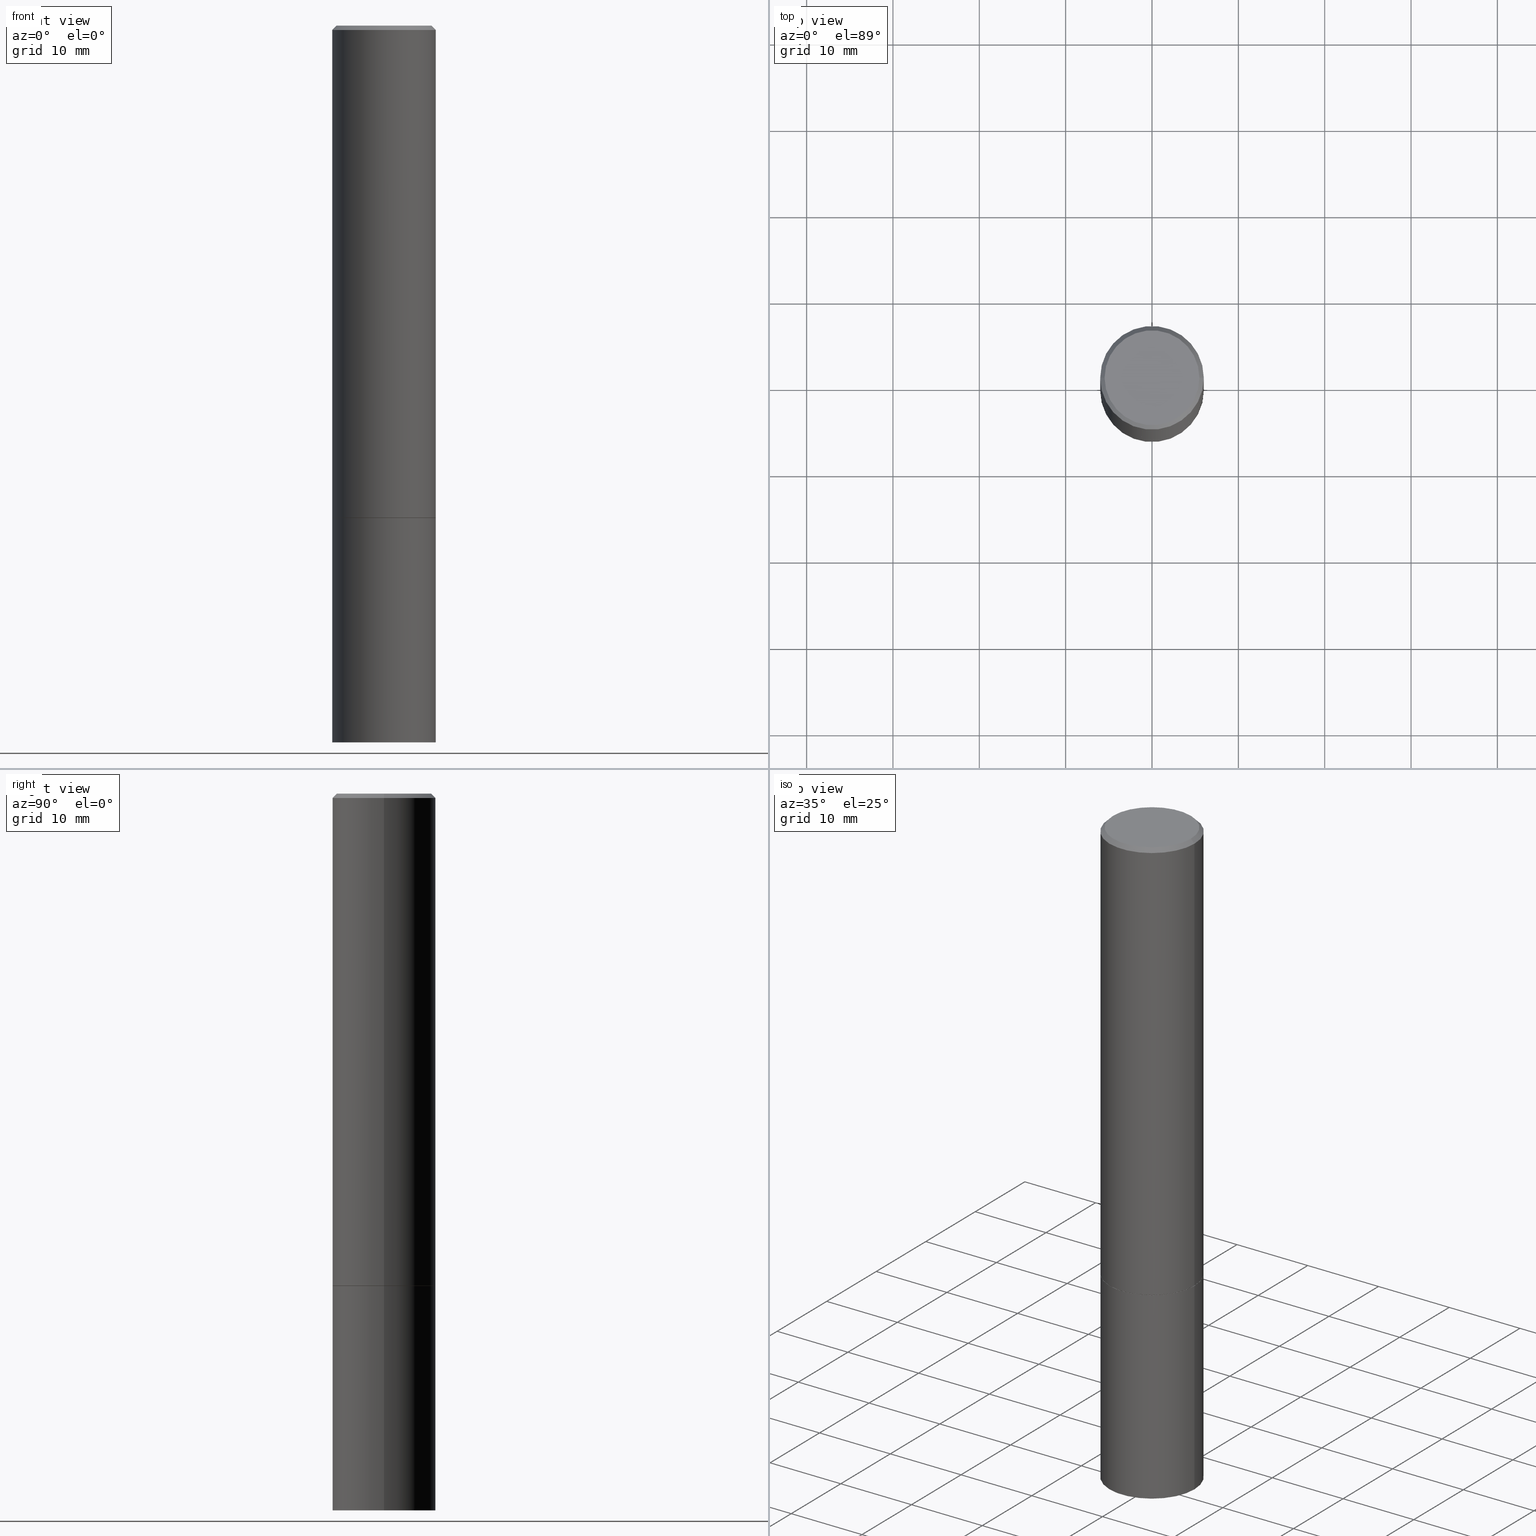
[diagram: canonical four-view strip — front | top / right | iso, engineering-drawing reading convention]
A machine part, canonical four-view strip (front | top / right | iso — engineering-drawing reading convention). The complete STEP part file that produces these views, byte-faithful:
ISO-10303-21;
HEADER;
FILE_DESCRIPTION (( 'STEP AP203' ),
    '1' );
FILE_NAME ('45494.STEP',
    '2024-02-28T09:46:00',
    ( '' ),
    ( '' ),
    'SwSTEP 2.0',
    'SolidWorks 2023',
    '' );
FILE_SCHEMA (( 'CONFIG_CONTROL_DESIGN' ));
ENDSEC;

DATA;
#1 = AXIS2_PLACEMENT_3D ( 'NONE', #354, #161, #44 ) ;
#2 = ORIENTED_EDGE ( 'NONE', *, *, #150, .T. ) ;
#3 = CALENDAR_DATE ( 2024, 28, 2 ) ;
#4 = CARTESIAN_POINT ( 'NONE',  ( 5.487876547960065873E-29, -7.835233272497903917E-15, -2.244100000000000428 ) ) ;
#5 = DATE_AND_TIME ( #341, #95 ) ;
#6 = DIRECTION ( 'NONE',  ( -2.445468806185136597E-29, 3.491481338843145583E-15, 1.000000000000000000 ) ) ;
#7 = SECURITY_CLASSIFICATION ( '', '', #339 ) ;
#8 = AXIS2_PLACEMENT_3D ( 'NONE', #92, #153, #264 ) ;
#9 = CARTESIAN_POINT ( 'NONE',  ( 5.487876547960065873E-29, -7.835233272497903917E-15, -2.244100000000000428 ) ) ;
#10 = DIMENSIONAL_EXPONENTS ( 1.000000000000000000, 0.000000000000000000, 0.000000000000000000, 0.000000000000000000, 0.000000000000000000, 0.000000000000000000, 0.000000000000000000 ) ;
#11 = FACE_OUTER_BOUND ( 'NONE', #162, .T. ) ;
#12 = EDGE_CURVE ( 'NONE', #315, #326, #96, .T. ) ;
#13 = CARTESIAN_POINT ( 'NONE',  ( 0.2161999999999996980, -1.586759460484350016E-15, 4.268512490111238857E-18 ) ) ;
#14 = AXIS2_PLACEMENT_3D ( 'NONE', #258, #122, #351 ) ;
#15 = DIRECTION ( 'NONE',  ( 1.000000000000000000, -6.982962677686269077E-15, 0.000000000000000000 ) ) ;
#16 = CARTESIAN_POINT ( 'NONE',  ( -0.2361999999999999933, -7.943871479852467996E-15, -2.244100000000000428 ) ) ;
#17 = CARTESIAN_POINT ( 'NONE',  ( 5.487876547960065873E-29, -7.835233272497903917E-15, -2.244100000000000428 ) ) ;
#18 = PRODUCT_DEFINITION_FORMATION_WITH_SPECIFIED_SOURCE ( 'ANY', '', #136, .NOT_KNOWN. ) ;
#19 = CARTESIAN_POINT ( 'NONE',  ( -0.2351999999999999924, -6.158738303641924552E-15, -2.244100000000000428 ) ) ;
#20 = EDGE_CURVE ( 'NONE', #326, #315, #353, .T. ) ;
#21 = DIRECTION ( 'NONE',  ( 1.000000000000000000, -6.982962677686269077E-15, 0.000000000000000000 ) ) ;
#22 = DIRECTION ( 'NONE',  ( 1.000000000000000000, -6.982962677686266711E-15, 4.876176775795936353E-29 ) ) ;
#23 = VERTEX_POINT ( 'NONE', #117 ) ;
#24 = AXIS2_PLACEMENT_3D ( 'NONE', #331, #68, #266 ) ;
#25 = PERSON_AND_ORGANIZATION ( #233, #51 ) ;
#26 = DATE_TIME_ROLE ( 'creation_date' ) ;
#27 = CC_DESIGN_PERSON_AND_ORGANIZATION_ASSIGNMENT ( #304, #364, ( #112 ) ) ;
#28 = ORIENTED_EDGE ( 'NONE', *, *, #20, .F. ) ;
#29 = PERSON_AND_ORGANIZATION ( #233, #51 ) ;
#30 = LOCAL_TIME ( 4, 46, 0.000000000000000000, #54 ) ;
#31 = ORIENTED_EDGE ( 'NONE', *, *, #20, .T. ) ;
#32 = CIRCLE ( 'NONE', #270, 0.2361999999999999933 ) ;
#33 = CALENDAR_DATE ( 2024, 28, 2 ) ;
#34 = ORIENTED_EDGE ( 'NONE', *, *, #239, .T. ) ;
#35 = ORIENTED_EDGE ( 'NONE', *, *, #145, .T. ) ;
#36 = PLANE ( 'NONE',  #75 ) ;
#37 = AXIS2_PLACEMENT_3D ( 'NONE', #219, #194, #287 ) ;
#38 = AXIS2_PLACEMENT_3D ( 'NONE', #344, #109, #202 ) ;
#39 = DIRECTION ( 'NONE',  ( -2.445468806185136597E-29, 3.491481338843145583E-15, 1.000000000000000000 ) ) ;
#40 = CARTESIAN_POINT ( 'NONE',  ( 5.487876547960065873E-29, -7.835233272497903917E-15, -2.244100000000000428 ) ) ;
#41 = DIRECTION ( 'NONE',  ( -2.438088387897960049E-29, 3.491481338843145188E-15, 1.000000000000000000 ) ) ;
#42 = EDGE_CURVE ( 'NONE', #76, #285, #226, .T. ) ;
#43 = DIRECTION ( 'NONE',  ( -2.445468806185136597E-29, 3.491481338843145583E-15, 1.000000000000000000 ) ) ;
#44 = DIRECTION ( 'NONE',  ( -1.000000000000000000, 6.982962677686266711E-15, 0.000000000000000000 ) ) ;
#45 = EDGE_CURVE ( 'NONE', #23, #314, #192, .T. ) ;
#46 =( NAMED_UNIT ( * ) PLANE_ANGLE_UNIT ( ) SI_UNIT ( $, .RADIAN. ) );
#47 = EDGE_LOOP ( 'NONE', ( #156, #60, #337, #169 ) ) ;
#48 = CARTESIAN_POINT ( 'NONE',  ( -0.2351999999999999924, -6.164036757990147743E-15, -2.244100000000000428 ) ) ;
#49 = EDGE_LOOP ( 'NONE', ( #360, #252, #105, #196 ) ) ;
#50 = DIRECTION ( 'NONE',  ( 1.000000000000000000, 0.000000000000000000, 0.000000000000000000 ) ) ;
#51 = ORGANIZATION ( 'UNSPECIFIED', 'UNSPECIFIED', '' ) ;
#52 = EDGE_CURVE ( 'NONE', #79, #175, #236, .T. ) ;
#53 = DIRECTION ( 'NONE',  ( 2.438088387897960049E-29, -3.491481338843145188E-15, -1.000000000000000000 ) ) ;
#54 = COORDINATED_UNIVERSAL_TIME_OFFSET ( 5, 0, .BEHIND. ) ;
#55 = ORIENTED_EDGE ( 'NONE', *, *, #220, .T. ) ;
#56 = ADVANCED_FACE ( 'NONE', ( #308 ), #36, .F. ) ;
#57 = ORIENTED_EDGE ( 'NONE', *, *, #52, .T. ) ;
#58 = AXIS2_PLACEMENT_3D ( 'NONE', #94, #147, #259 ) ;
#59 = EDGE_LOOP ( 'NONE', ( #160, #99, #144, #215 ) ) ;
#60 = ORIENTED_EDGE ( 'NONE', *, *, #45, .T. ) ;
#61 = CARTESIAN_POINT ( 'NONE',  ( 4.890937612370284544E-31, -6.982962677686307633E-17, -0.02000000000000004552 ) ) ;
#62 = FACE_OUTER_BOUND ( 'NONE', #311, .T. ) ;
#63 = CARTESIAN_POINT ( 'NONE',  ( 0.2361999999999997157, -1.690279253850496996E-15, -0.02000000000000004552 ) ) ;
#64 = ADVANCED_FACE ( 'NONE', ( #62 ), #319, .T. ) ;
#65 = LINE ( 'NONE', #148, #118 ) ;
#66 = AXIS2_PLACEMENT_3D ( 'NONE', #193, #174, #50 ) ;
#67 = CARTESIAN_POINT ( 'NONE',  ( 0.2361999999999999933, -9.481117575628557435E-15, -2.243100000000000094 ) ) ;
#68 = DIRECTION ( 'NONE',  ( -2.445468806185136597E-29, 3.491481338843145583E-15, 1.000000000000000000 ) ) ;
#69 = CARTESIAN_POINT ( 'NONE',  ( 1.509716530915768548E-15, 0.2161999999999996980, -7.527240092128368218E-16 ) ) ;
#70 = ORIENTED_EDGE ( 'NONE', *, *, #173, .F. ) ;
#71 = FACE_OUTER_BOUND ( 'NONE', #246, .T. ) ;
#72 = VERTEX_POINT ( 'NONE', #206 ) ;
#73 = CARTESIAN_POINT ( 'NONE',  ( 0.2351999999999999924, -9.477626094289712851E-15, -2.244100000000000428 ) ) ;
#74 = APPLICATION_PROTOCOL_DEFINITION ( 'international standard', 'config_control_design', 1994, #272 ) ;
#75 = AXIS2_PLACEMENT_3D ( 'NONE', #363, #53, #167 ) ;
#76 = VERTEX_POINT ( 'NONE', #229 ) ;
#77 = APPROVAL_PERSON_ORGANIZATION ( #29, #124, #133 ) ;
#78 = COORDINATED_UNIVERSAL_TIME_OFFSET ( 5, 0, .BEHIND. ) ;
#79 = VERTEX_POINT ( 'NONE', #13 ) ;
#80 = CC_DESIGN_PERSON_AND_ORGANIZATION_ASSIGNMENT ( #251, #243, ( #7 ) ) ;
#81 = ORIENTED_EDGE ( 'NONE', *, *, #150, .F. ) ;
#82 = PERSON_AND_ORGANIZATION_ROLE ( 'design_owner' ) ;
#83 = EDGE_LOOP ( 'NONE', ( #142, #135, #35, #81 ) ) ;
#84 = PERSON_AND_ORGANIZATION_ROLE ( 'design_supplier' ) ;
#85 = DIRECTION ( 'NONE',  ( 1.000000000000000000, -6.982962677686264344E-15, 0.000000000000000000 ) ) ;
#86 = ADVANCED_FACE ( 'NONE', ( #11 ), #91, .T. ) ;
#87 = DIRECTION ( 'NONE',  ( 1.000000000000000000, -6.982962677686266711E-15, 4.876176775795936353E-29 ) ) ;
#88 = FACE_OUTER_BOUND ( 'NONE', #312, .T. ) ;
#89 = MANIFOLD_SOLID_BREP ( 'Body-Move/Copy2[2]', #255 ) ;
#90 = CONICAL_SURFACE ( 'NONE', #171, 0.2351999999999999924, 0.7853981633974141952 ) ;
#91 = CYLINDRICAL_SURFACE ( 'NONE', #58, 0.2361999999999998545 ) ;
#92 = CARTESIAN_POINT ( 'NONE',  ( 5.485431079153880270E-29, -7.831741791159060910E-15, -2.243100000000000094 ) ) ;
#93 = UNCERTAINTY_MEASURE_WITH_UNIT (LENGTH_MEASURE( 1.000000000000000082E-05 ), #98, 'distance_accuracy_value', 'NONE');
#94 = CARTESIAN_POINT ( 'NONE',  ( 0.000000000000000000, 0.000000000000000000, 0.000000000000000000 ) ) ;
#95 = LOCAL_TIME ( 4, 46, 0.000000000000000000, #307 ) ;
#96 = CIRCLE ( 'NONE', #305, 0.2351999999999999924 ) ;
#97 = VECTOR ( 'NONE', #209, 39.37007874015748143 ) ;
#98 =( CONVERSION_BASED_UNIT ( 'INCH', #130 ) LENGTH_UNIT ( ) NAMED_UNIT ( #10 ) );
#99 = ORIENTED_EDGE ( 'NONE', *, *, #42, .T. ) ;
#100 = DIRECTION ( 'NONE',  ( -2.445468806185136597E-29, 3.491481338843145583E-15, 1.000000000000000000 ) ) ;
#101 = DIRECTION ( 'NONE',  ( -1.000000000000000000, 6.982962677686265922E-15, -4.876176775795935793E-29 ) ) ;
#102 = ADVANCED_FACE ( 'NONE', ( #180 ), #125, .T. ) ;
#103 = VECTOR ( 'NONE', #330, 39.37007874015748143 ) ;
#104 = DIRECTION ( 'NONE',  ( 2.438088387897960049E-29, -3.491481338843145188E-15, -1.000000000000000000 ) ) ;
#105 = ORIENTED_EDGE ( 'NONE', *, *, #355, .F. ) ;
#106 = DIRECTION ( 'NONE',  ( -0.7071067811865232589, 7.493145998870265808E-15, 0.7071067811865715536 ) ) ;
#107 = ADVANCED_FACE ( 'NONE', ( #317 ), #90, .T. ) ;
#108 = SHAPE_DEFINITION_REPRESENTATION ( #198, #210 ) ;
#109 = DIRECTION ( 'NONE',  ( -2.445468806185136597E-29, 3.491481338843145583E-15, 1.000000000000000000 ) ) ;
#110 = AXIS2_PLACEMENT_3D ( 'NONE', #17, #327, #21 ) ;
#111 = CARTESIAN_POINT ( 'NONE',  ( -0.2361999999999998545, 1.678301941865355605E-15, -1.161852468318208056E-29 ) ) ;
#112 = PRODUCT_DEFINITION ( 'UNKNOWN', '', #18, #338 ) ;
#113 = DATE_TIME_ROLE ( 'classification_date' ) ;
#114 = DIRECTION ( 'NONE',  ( 1.000000000000000000, -6.982962677686264344E-15, 0.000000000000000000 ) ) ;
#115 = CALENDAR_DATE ( 2024, 28, 2 ) ;
#116 = CARTESIAN_POINT ( 'NONE',  ( 5.487876547960065873E-29, -7.835233272497903917E-15, -2.244100000000000428 ) ) ;
#117 = CARTESIAN_POINT ( 'NONE',  ( -0.2361999999999999933, -7.943871479852467996E-15, -3.267700000000000049 ) ) ;
#118 = VECTOR ( 'NONE', #320, 39.37007874015748143 ) ;
#119 = DIRECTION ( 'NONE',  ( -0.7071067811865471286, 2.468850131082252722E-15, -0.7071067811865479058 ) ) ;
#120 = DIRECTION ( 'NONE',  ( -2.445468806185136597E-29, 3.491481338843145583E-15, 1.000000000000000000 ) ) ;
#121 = EDGE_CURVE ( 'NONE', #285, #72, #301, .T. ) ;
#122 = DIRECTION ( 'NONE',  ( 2.445468806185136597E-29, -3.491481338843145583E-15, -1.000000000000000000 ) ) ;
#123 = AXIS2_PLACEMENT_3D ( 'NONE', #291, #321, #295 ) ;
#124 = APPROVAL ( #143, 'UNSPECIFIED' ) ;
#125 = CYLINDRICAL_SURFACE ( 'NONE', #128, 0.2361999999999999933 ) ;
#126 = CARTESIAN_POINT ( 'NONE',  ( 0.2361999999999999933, -9.484609056967400443E-15, -2.244100000000000428 ) ) ;
#127 =( LENGTH_UNIT ( ) NAMED_UNIT ( * ) SI_UNIT ( $, .METRE. ) );
#128 = AXIS2_PLACEMENT_3D ( 'NONE', #204, #203, #87 ) ;
#129 = DIRECTION ( 'NONE',  ( -1.000000000000000000, 6.982962677686265922E-15, -4.876176775795935793E-29 ) ) ;
#130 = LENGTH_MEASURE_WITH_UNIT ( LENGTH_MEASURE( 0.02539999999999999897 ), #127 );
#131 = CC_DESIGN_APPROVAL ( #359, ( #7 ) ) ;
#132 = CIRCLE ( 'NONE', #24, 0.2161999999999996980 ) ;
#133 = APPROVAL_ROLE ( '' ) ;
#134 = EDGE_LOOP ( 'NONE', ( #303, #225, #274, #283 ) ) ;
#135 = ORIENTED_EDGE ( 'NONE', *, *, #228, .T. ) ;
#136 = PRODUCT ( '45494', '45494', '', ( #332 ) ) ;
#137 = APPROVAL_DATE_TIME ( #170, #124 ) ;
#138 = CLOSED_SHELL ( 'NONE', ( #324, #316, #56, #102 ) ) ;
#139 = VECTOR ( 'NONE', #106, 39.37007874015748854 ) ;
#140 = ORIENTED_EDGE ( 'NONE', *, *, #12, .F. ) ;
#141 = APPROVAL_DATE_TIME ( #168, #348 ) ;
#142 = ORIENTED_EDGE ( 'NONE', *, *, #52, .F. ) ;
#143 = APPROVAL_STATUS ( 'not_yet_approved' ) ;
#144 = ORIENTED_EDGE ( 'NONE', *, *, #145, .F. ) ;
#145 = EDGE_CURVE ( 'NONE', #72, #285, #361, .T. ) ;
#146 = APPLICATION_CONTEXT ( 'configuration controlled 3d designs of mechanical parts and assemblies' ) ;
#147 = DIRECTION ( 'NONE',  ( -2.445468806185136597E-29, 3.491481338843145583E-15, 1.000000000000000000 ) ) ;
#148 = CARTESIAN_POINT ( 'NONE',  ( 0.2361999999999999933, -1.649375784469496131E-15, 1.151752954443000088E-29 ) ) ;
#149 = DIRECTION ( 'NONE',  ( 1.000000000000000000, -6.982962677686266711E-15, 0.000000000000000000 ) ) ;
#150 = EDGE_CURVE ( 'NONE', #175, #285, #232, .T. ) ;
#151 = LINE ( 'NONE', #63, #290 ) ;
#152 = AXIS2_PLACEMENT_3D ( 'NONE', #154, #100, #22 ) ;
#153 = DIRECTION ( 'NONE',  ( -2.445468806185136597E-29, 3.491481338843145583E-15, 1.000000000000000000 ) ) ;
#154 = CARTESIAN_POINT ( 'NONE',  ( 0.000000000000000000, 0.000000000000000000, 0.000000000000000000 ) ) ;
#155 = DIRECTION ( 'NONE',  ( -2.445468806185136597E-29, 3.491481338843145583E-15, 1.000000000000000000 ) ) ;
#156 = ORIENTED_EDGE ( 'NONE', *, *, #335, .F. ) ;
#157 = AXIS2_PLACEMENT_3D ( 'NONE', #61, #262, #149 ) ;
#158 = CARTESIAN_POINT ( 'NONE',  ( 1.649375784469575806E-15, 0.2361999999999885858, -3.267700000000001381 ) ) ;
#159 = EDGE_CURVE ( 'NONE', #314, #176, #65, .T. ) ;
#160 = ORIENTED_EDGE ( 'NONE', *, *, #286, .T. ) ;
#161 = DIRECTION ( 'NONE',  ( 2.445468806185136597E-29, -3.491481338843145583E-15, -1.000000000000000000 ) ) ;
#162 = EDGE_LOOP ( 'NONE', ( #365, #34, #277, #190 ) ) ;
#163 = DIRECTION ( 'NONE',  ( 0.7071067811865232589, -2.468850131082003836E-15, 0.7071067811865715536 ) ) ;
#164 = ORIENTED_EDGE ( 'NONE', *, *, #45, .F. ) ;
#165 = VECTOR ( 'NONE', #119, 39.37007874015748143 ) ;
#166 = APPROVAL_STATUS ( 'not_yet_approved' ) ;
#167 = DIRECTION ( 'NONE',  ( -1.000000000000000000, 6.982962677686265922E-15, -4.876176775795935793E-29 ) ) ;
#168 = DATE_AND_TIME ( #33, #30 ) ;
#169 = ORIENTED_EDGE ( 'NONE', *, *, #220, .F. ) ;
#170 = DATE_AND_TIME ( #3, #306 ) ;
#171 = AXIS2_PLACEMENT_3D ( 'NONE', #292, #39, #207 ) ;
#172 = ORIENTED_EDGE ( 'NONE', *, *, #261, .T. ) ;
#173 = EDGE_CURVE ( 'NONE', #314, #23, #178, .T. ) ;
#174 = DIRECTION ( 'NONE',  ( 0.000000000000000000, 0.000000000000000000, 1.000000000000000000 ) ) ;
#175 = VERTEX_POINT ( 'NONE', #293 ) ;
#176 = VERTEX_POINT ( 'NONE', #126 ) ;
#177 = FACE_OUTER_BOUND ( 'NONE', #59, .T. ) ;
#178 = CIRCLE ( 'NONE', #231, 0.2361999999999999933 ) ;
#179 = CC_DESIGN_DATE_AND_TIME_ASSIGNMENT ( #284, #113, ( #7 ) ) ;
#180 = FACE_OUTER_BOUND ( 'NONE', #47, .T. ) ;
#181 = DIRECTION ( 'NONE',  ( 0.7071067811865471286, -7.319954787623254468E-15, -0.7071067811865479058 ) ) ;
#182 = CARTESIAN_POINT ( 'NONE',  ( 7.991058417971171713E-29, -1.140911357093774644E-14, -3.267700000000000049 ) ) ;
#183 = CIRCLE ( 'NONE', #242, 0.2361999999999999933 ) ;
#184 = FACE_OUTER_BOUND ( 'NONE', #300, .T. ) ;
#185 = CC_DESIGN_DATE_AND_TIME_ASSIGNMENT ( #276, #26, ( #112 ) ) ;
#186 = CARTESIAN_POINT ( 'NONE',  ( -0.2361999999999997157, 1.579546157692631255E-15, -0.02000000000000004552 ) ) ;
#187 = LINE ( 'NONE', #189, #103 ) ;
#188 = ADVANCED_FACE ( 'NONE', ( #297 ), #257, .T. ) ;
#189 = CARTESIAN_POINT ( 'NONE',  ( 0.2361999999999998545, -1.649375784469495145E-15, 1.151752954442999387E-29 ) ) ;
#190 = ORIENTED_EDGE ( 'NONE', *, *, #121, .F. ) ;
#191 =( NAMED_UNIT ( * ) SI_UNIT ( $, .STERADIAN. ) SOLID_ANGLE_UNIT ( ) );
#192 = CIRCLE ( 'NONE', #38, 0.2361999999999999933 ) ;
#193 = CARTESIAN_POINT ( 'NONE',  ( 0.000000000000000000, 0.000000000000000000, 0.000000000000000000 ) ) ;
#194 = DIRECTION ( 'NONE',  ( -2.445468806185136597E-29, 3.491481338843145583E-15, 1.000000000000000000 ) ) ;
#195 = APPROVAL_ROLE ( '' ) ;
#196 = ORIENTED_EDGE ( 'NONE', *, *, #159, .F. ) ;
#197 = ORIENTED_EDGE ( 'NONE', *, *, #239, .F. ) ;
#198 = PRODUCT_DEFINITION_SHAPE ( 'NONE', 'NONE',  #112 ) ;
#199 = PERSON_AND_ORGANIZATION ( #233, #51 ) ;
#200 = CONICAL_SURFACE ( 'NONE', #1, 0.2361999999999997157, 0.7853981633974477239 ) ;
#201 = DIRECTION ( 'NONE',  ( -2.445468806185136597E-29, 3.491481338843145583E-15, 1.000000000000000000 ) ) ;
#202 = DIRECTION ( 'NONE',  ( 1.000000000000000000, -6.982962677686265133E-15, 0.000000000000000000 ) ) ;
#203 = DIRECTION ( 'NONE',  ( -2.445468806185136597E-29, 3.491481338843145583E-15, 1.000000000000000000 ) ) ;
#204 = CARTESIAN_POINT ( 'NONE',  ( 0.000000000000000000, 0.000000000000000000, 0.000000000000000000 ) ) ;
#205 = CIRCLE ( 'NONE', #110, 0.2361999999999999933 ) ;
#206 = CARTESIAN_POINT ( 'NONE',  ( 0.2361999999999997157, -1.690279253850496996E-15, -0.02000000000000004552 ) ) ;
#207 = DIRECTION ( 'NONE',  ( 1.000000000000000000, -6.982962677686264344E-15, 0.000000000000000000 ) ) ;
#208 = DIRECTION ( 'NONE',  ( 1.000000000000000000, -6.982962677686264344E-15, 0.000000000000000000 ) ) ;
#209 = DIRECTION ( 'NONE',  ( -2.445468806185136877E-29, 3.491481338843145188E-15, 1.000000000000000000 ) ) ;
#210 = ADVANCED_BREP_SHAPE_REPRESENTATION ( '45494', ( #346, #89, #66 ), #296 ) ;
#211 = FACE_OUTER_BOUND ( 'NONE', #49, .T. ) ;
#212 = CC_DESIGN_APPROVAL ( #348, ( #18 ) ) ;
#213 = AXIS2_PLACEMENT_3D ( 'NONE', #158, #241, #101 ) ;
#214 = CARTESIAN_POINT ( 'NONE',  ( 5.485431079153880270E-29, -7.831741791159060910E-15, -2.243100000000000094 ) ) ;
#215 = ORIENTED_EDGE ( 'NONE', *, *, #265, .F. ) ;
#216 = ADVANCED_FACE ( 'NONE', ( #88 ), #234, .F. ) ;
#217 = ORIENTED_EDGE ( 'NONE', *, *, #328, .T. ) ;
#218 = AXIS2_PLACEMENT_3D ( 'NONE', #322, #120, #350 ) ;
#219 = CARTESIAN_POINT ( 'NONE',  ( -1.043851414335219820E-46, 1.490343170380447200E-32, 4.268512490100411279E-18 ) ) ;
#220 = EDGE_CURVE ( 'NONE', #244, #176, #183, .T. ) ;
#221 = APPROVAL_ROLE ( '' ) ;
#222 = EDGE_LOOP ( 'NONE', ( #172, #57 ) ) ;
#223 = ADVANCED_FACE ( 'NONE', ( #177 ), #352, .T. ) ;
#224 = PERSON_AND_ORGANIZATION_ROLE ( 'creator' ) ;
#225 = ORIENTED_EDGE ( 'NONE', *, *, #268, .T. ) ;
#226 = LINE ( 'NONE', #111, #349 ) ;
#227 = DIRECTION ( 'NONE',  ( -2.445468806185136597E-29, 3.491481338843145583E-15, 1.000000000000000000 ) ) ;
#228 = EDGE_CURVE ( 'NONE', #79, #72, #151, .T. ) ;
#229 = CARTESIAN_POINT ( 'NONE',  ( -0.2362000000000000210, -2.272483767102602555E-15, -2.243100000000000094 ) ) ;
#230 = DIRECTION ( 'NONE',  ( 1.000000000000000000, -6.982962677686265922E-15, 4.876176775795935793E-29 ) ) ;
#231 = AXIS2_PLACEMENT_3D ( 'NONE', #182, #347, #323 ) ;
#232 = LINE ( 'NONE', #260, #165 ) ;
#233 = PERSON ( 'UNSPECIFIED', 'UNSPECIFIED', 'UNSPECIFIED', ('UNSPECIFIED'), ('UNSPECIFIED'), ('UNSPECIFIED') ) ;
#234 = PLANE ( 'NONE',  #263 ) ;
#235 = PLANE ( 'NONE',  #237 ) ;
#236 = CIRCLE ( 'NONE', #37, 0.2161999999999996980 ) ;
#237 = AXIS2_PLACEMENT_3D ( 'NONE', #69, #104, #129 ) ;
#238 = APPLICATION_PROTOCOL_DEFINITION ( 'international standard', 'config_control_design', 1994, #146 ) ;
#239 = EDGE_CURVE ( 'NONE', #76, #249, #329, .T. ) ;
#240 = DIRECTION ( 'NONE',  ( 1.000000000000000000, -6.982962677686269077E-15, 0.000000000000000000 ) ) ;
#241 = DIRECTION ( 'NONE',  ( 2.438088387897960049E-29, -3.491481338843145188E-15, -1.000000000000000000 ) ) ;
#242 = AXIS2_PLACEMENT_3D ( 'NONE', #40, #227, #15 ) ;
#243 = PERSON_AND_ORGANIZATION_ROLE ( 'classification_officer' ) ;
#244 = VERTEX_POINT ( 'NONE', #16 ) ;
#245 = CALENDAR_DATE ( 2024, 28, 2 ) ;
#246 = EDGE_LOOP ( 'NONE', ( #70, #164 ) ) ;
#247 = AXIS2_PLACEMENT_3D ( 'NONE', #345, #43, #208 ) ;
#248 = PERSON_AND_ORGANIZATION ( #233, #51 ) ;
#249 = VERTEX_POINT ( 'NONE', #67 ) ;
#250 = ADVANCED_FACE ( 'NONE', ( #184 ), #200, .T. ) ;
#251 = PERSON_AND_ORGANIZATION ( #233, #51 ) ;
#252 = ORIENTED_EDGE ( 'NONE', *, *, #335, .T. ) ;
#253 = PERSON_AND_ORGANIZATION ( #233, #51 ) ;
#254 = EDGE_LOOP ( 'NONE', ( #356, #55 ) ) ;
#255 = CLOSED_SHELL ( 'NONE', ( #107, #223, #188, #250, #86, #64, #216, #256 ) ) ;
#256 = ADVANCED_FACE ( 'NONE', ( #357 ), #235, .F. ) ;
#257 = CONICAL_SURFACE ( 'NONE', #14, 0.2361999999999997157, 0.7853981633974477239 ) ;
#258 = CARTESIAN_POINT ( 'NONE',  ( 4.890937612370284544E-31, -6.982962677686307633E-17, -0.02000000000000004552 ) ) ;
#259 = DIRECTION ( 'NONE',  ( 1.000000000000000000, -6.982962677686266711E-15, 4.876176775795935793E-29 ) ) ;
#260 = CARTESIAN_POINT ( 'NONE',  ( -0.2361999999999997157, 1.579546157692631255E-15, -0.02000000000000004552 ) ) ;
#261 = EDGE_CURVE ( 'NONE', #175, #79, #132, .T. ) ;
#262 = DIRECTION ( 'NONE',  ( -2.445468806185136597E-29, 3.491481338843145583E-15, 1.000000000000000000 ) ) ;
#263 = AXIS2_PLACEMENT_3D ( 'NONE', #9, #41, #230 ) ;
#264 = DIRECTION ( 'NONE',  ( 1.000000000000000000, -6.982962677686269077E-15, 0.000000000000000000 ) ) ;
#265 = EDGE_CURVE ( 'NONE', #249, #72, #187, .T. ) ;
#266 = DIRECTION ( 'NONE',  ( 1.000000000000000000, -6.982962677686266711E-15, 4.876217060660162401E-29 ) ) ;
#267 = LINE ( 'NONE', #275, #97 ) ;
#268 = EDGE_CURVE ( 'NONE', #326, #76, #358, .T. ) ;
#269 = ORIENTED_EDGE ( 'NONE', *, *, #268, .F. ) ;
#270 = AXIS2_PLACEMENT_3D ( 'NONE', #214, #155, #240 ) ;
#271 = CYLINDRICAL_SURFACE ( 'NONE', #152, 0.2361999999999999933 ) ;
#272 = APPLICATION_CONTEXT ( 'configuration controlled 3d designs of mechanical parts and assemblies' ) ;
#273 = PLANE ( 'NONE',  #213 ) ;
#274 = ORIENTED_EDGE ( 'NONE', *, *, #286, .F. ) ;
#275 = CARTESIAN_POINT ( 'NONE',  ( -0.2361999999999999933, 1.678301941865356591E-15, -1.161852468318208757E-29 ) ) ;
#276 = DATE_AND_TIME ( #115, #334 ) ;
#277 = ORIENTED_EDGE ( 'NONE', *, *, #265, .T. ) ;
#278 = APPROVAL_DATE_TIME ( #5, #359 ) ;
#279 = CC_DESIGN_PERSON_AND_ORGANIZATION_ASSIGNMENT ( #253, #84, ( #18 ) ) ;
#280 = ORIENTED_EDGE ( 'NONE', *, *, #121, .T. ) ;
#281 = CC_DESIGN_SECURITY_CLASSIFICATION ( #7, ( #18 ) ) ;
#282 = APPROVAL_STATUS ( 'not_yet_approved' ) ;
#283 = ORIENTED_EDGE ( 'NONE', *, *, #328, .F. ) ;
#284 = DATE_AND_TIME ( #245, #318 ) ;
#285 = VERTEX_POINT ( 'NONE', #186 ) ;
#286 = EDGE_CURVE ( 'NONE', #249, #76, #32, .T. ) ;
#287 = DIRECTION ( 'NONE',  ( 1.000000000000000000, -6.982962677686266711E-15, 4.876217060660162401E-29 ) ) ;
#288 = CC_DESIGN_PERSON_AND_ORGANIZATION_ASSIGNMENT ( #310, #82, ( #136 ) ) ;
#289 = CC_DESIGN_APPROVAL ( #124, ( #112 ) ) ;
#290 = VECTOR ( 'NONE', #181, 39.37007874015748143 ) ;
#291 = CARTESIAN_POINT ( 'NONE',  ( 0.000000000000000000, 0.000000000000000000, 0.000000000000000000 ) ) ;
#292 = CARTESIAN_POINT ( 'NONE',  ( 5.487876547960065873E-29, -7.835233272497903917E-15, -2.244100000000000428 ) ) ;
#293 = CARTESIAN_POINT ( 'NONE',  ( -0.2161999999999996980, 1.544631344304200000E-15, 4.268512490089730842E-18 ) ) ;
#294 = APPROVAL_PERSON_ORGANIZATION ( #248, #359, #195 ) ;
#295 = DIRECTION ( 'NONE',  ( 1.000000000000000000, -6.982962677686266711E-15, 4.876176775795935793E-29 ) ) ;
#296 =( GEOMETRIC_REPRESENTATION_CONTEXT ( 3 ) GLOBAL_UNCERTAINTY_ASSIGNED_CONTEXT ( ( #93 ) ) GLOBAL_UNIT_ASSIGNED_CONTEXT ( ( #98, #46, #191 ) ) REPRESENTATION_CONTEXT ( 'NONE', 'WORKASPACE' ) );
#297 = FACE_OUTER_BOUND ( 'NONE', #83, .T. ) ;
#298 = APPROVAL_PERSON_ORGANIZATION ( #199, #348, #221 ) ;
#299 = LINE ( 'NONE', #73, #313 ) ;
#300 = EDGE_LOOP ( 'NONE', ( #340, #342, #2, #280 ) ) ;
#301 = CIRCLE ( 'NONE', #218, 0.2361999999999997157 ) ;
#302 = CARTESIAN_POINT ( 'NONE',  ( 0.2361999999999999933, -1.305848935540724297E-14, -3.267700000000000049 ) ) ;
#303 = ORIENTED_EDGE ( 'NONE', *, *, #12, .T. ) ;
#304 = PERSON_AND_ORGANIZATION ( #233, #51 ) ;
#305 = AXIS2_PLACEMENT_3D ( 'NONE', #4, #6, #114 ) ;
#306 = LOCAL_TIME ( 4, 46, 0.000000000000000000, #336 ) ;
#307 = COORDINATED_UNIVERSAL_TIME_OFFSET ( 5, 0, .BEHIND. ) ;
#308 = FACE_OUTER_BOUND ( 'NONE', #254, .T. ) ;
#309 = PRODUCT_RELATED_PRODUCT_CATEGORY ( 'detail', '', ( #136 ) ) ;
#310 = PERSON_AND_ORGANIZATION ( #233, #51 ) ;
#311 = EDGE_LOOP ( 'NONE', ( #269, #31, #217, #197 ) ) ;
#312 = EDGE_LOOP ( 'NONE', ( #140, #28 ) ) ;
#313 = VECTOR ( 'NONE', #163, 39.37007874015748854 ) ;
#314 = VERTEX_POINT ( 'NONE', #302 ) ;
#315 = VERTEX_POINT ( 'NONE', #325 ) ;
#316 = ADVANCED_FACE ( 'NONE', ( #71 ), #273, .T. ) ;
#317 = FACE_OUTER_BOUND ( 'NONE', #134, .T. ) ;
#318 = LOCAL_TIME ( 4, 46, 0.000000000000000000, #362 ) ;
#319 = CONICAL_SURFACE ( 'NONE', #247, 0.2351999999999999924, 0.7853981633974141952 ) ;
#320 = DIRECTION ( 'NONE',  ( -2.445468806185136877E-29, 3.491481338843145188E-15, 1.000000000000000000 ) ) ;
#321 = DIRECTION ( 'NONE',  ( -2.445468806185136597E-29, 3.491481338843145583E-15, 1.000000000000000000 ) ) ;
#322 = CARTESIAN_POINT ( 'NONE',  ( 4.890937612370284544E-31, -6.982962677686307633E-17, -0.02000000000000004552 ) ) ;
#323 = DIRECTION ( 'NONE',  ( 1.000000000000000000, -6.982962677686265133E-15, 0.000000000000000000 ) ) ;
#324 = ADVANCED_FACE ( 'NONE', ( #211 ), #271, .T. ) ;
#325 = CARTESIAN_POINT ( 'NONE',  ( 0.2351999999999999924, -9.477626094289712851E-15, -2.244100000000000428 ) ) ;
#326 = VERTEX_POINT ( 'NONE', #19 ) ;
#327 = DIRECTION ( 'NONE',  ( -2.445468806185136597E-29, 3.491481338843145583E-15, 1.000000000000000000 ) ) ;
#328 = EDGE_CURVE ( 'NONE', #315, #249, #299, .T. ) ;
#329 = CIRCLE ( 'NONE', #8, 0.2361999999999999933 ) ;
#330 = DIRECTION ( 'NONE',  ( -2.445468806185136877E-29, 3.491481338843145188E-15, 1.000000000000000000 ) ) ;
#331 = CARTESIAN_POINT ( 'NONE',  ( -1.043851414335219820E-46, 1.490343170380447200E-32, 4.268512490100411279E-18 ) ) ;
#332 = MECHANICAL_CONTEXT ( 'NONE', #146, 'mechanical' ) ;
#333 = DIRECTION ( 'NONE',  ( -2.445468806185136877E-29, 3.491481338843145188E-15, 1.000000000000000000 ) ) ;
#334 = LOCAL_TIME ( 4, 46, 0.000000000000000000, #78 ) ;
#335 = EDGE_CURVE ( 'NONE', #23, #244, #267, .T. ) ;
#336 = COORDINATED_UNIVERSAL_TIME_OFFSET ( 5, 0, .BEHIND. ) ;
#337 = ORIENTED_EDGE ( 'NONE', *, *, #159, .T. ) ;
#338 = DESIGN_CONTEXT ( 'detailed design', #272, 'design' ) ;
#339 = SECURITY_CLASSIFICATION_LEVEL ( 'unclassified' ) ;
#340 = ORIENTED_EDGE ( 'NONE', *, *, #228, .F. ) ;
#341 = CALENDAR_DATE ( 2024, 28, 2 ) ;
#342 = ORIENTED_EDGE ( 'NONE', *, *, #261, .F. ) ;
#343 = CC_DESIGN_PERSON_AND_ORGANIZATION_ASSIGNMENT ( #25, #224, ( #18 ) ) ;
#344 = CARTESIAN_POINT ( 'NONE',  ( 7.991058417971171713E-29, -1.140911357093774644E-14, -3.267700000000000049 ) ) ;
#345 = CARTESIAN_POINT ( 'NONE',  ( 5.487876547960065873E-29, -7.835233272497903917E-15, -2.244100000000000428 ) ) ;
#346 = MANIFOLD_SOLID_BREP ( 'Body-Move/Copy2[1]', #138 ) ;
#347 = DIRECTION ( 'NONE',  ( -2.445468806185136597E-29, 3.491481338843145583E-15, 1.000000000000000000 ) ) ;
#348 = APPROVAL ( #282, 'UNSPECIFIED' ) ;
#349 = VECTOR ( 'NONE', #333, 39.37007874015748143 ) ;
#350 = DIRECTION ( 'NONE',  ( 1.000000000000000000, -6.982962677686266711E-15, 0.000000000000000000 ) ) ;
#351 = DIRECTION ( 'NONE',  ( -1.000000000000000000, 6.982962677686266711E-15, 0.000000000000000000 ) ) ;
#352 = CYLINDRICAL_SURFACE ( 'NONE', #123, 0.2361999999999998545 ) ;
#353 = CIRCLE ( 'NONE', #366, 0.2351999999999999924 ) ;
#354 = CARTESIAN_POINT ( 'NONE',  ( 4.890937612370284544E-31, -6.982962677686307633E-17, -0.02000000000000004552 ) ) ;
#355 = EDGE_CURVE ( 'NONE', #176, #244, #205, .T. ) ;
#356 = ORIENTED_EDGE ( 'NONE', *, *, #355, .T. ) ;
#357 = FACE_OUTER_BOUND ( 'NONE', #222, .T. ) ;
#358 = LINE ( 'NONE', #48, #139 ) ;
#359 = APPROVAL ( #166, 'UNSPECIFIED' ) ;
#360 = ORIENTED_EDGE ( 'NONE', *, *, #173, .T. ) ;
#361 = CIRCLE ( 'NONE', #157, 0.2361999999999997157 ) ;
#362 = COORDINATED_UNIVERSAL_TIME_OFFSET ( 5, 0, .BEHIND. ) ;
#363 = CARTESIAN_POINT ( 'NONE',  ( 1.649375784469550759E-15, 0.2361999999999921662, -2.244100000000000872 ) ) ;
#364 = PERSON_AND_ORGANIZATION_ROLE ( 'creator' ) ;
#365 = ORIENTED_EDGE ( 'NONE', *, *, #42, .F. ) ;
#366 = AXIS2_PLACEMENT_3D ( 'NONE', #116, #201, #85 ) ;
ENDSEC;
END-ISO-10303-21;
